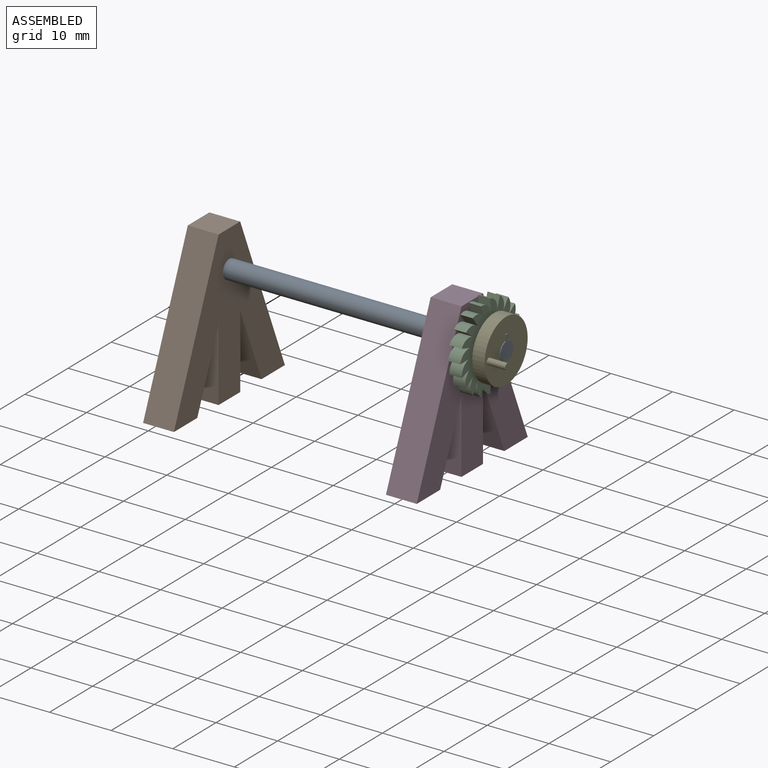
[diagram: assembled view]
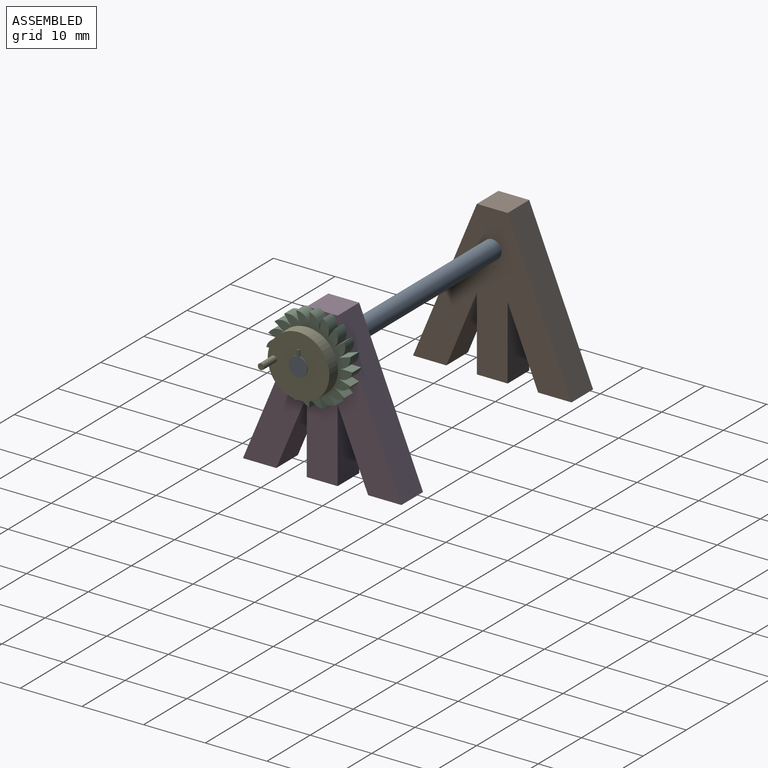
[diagram: assembled view, second angle]
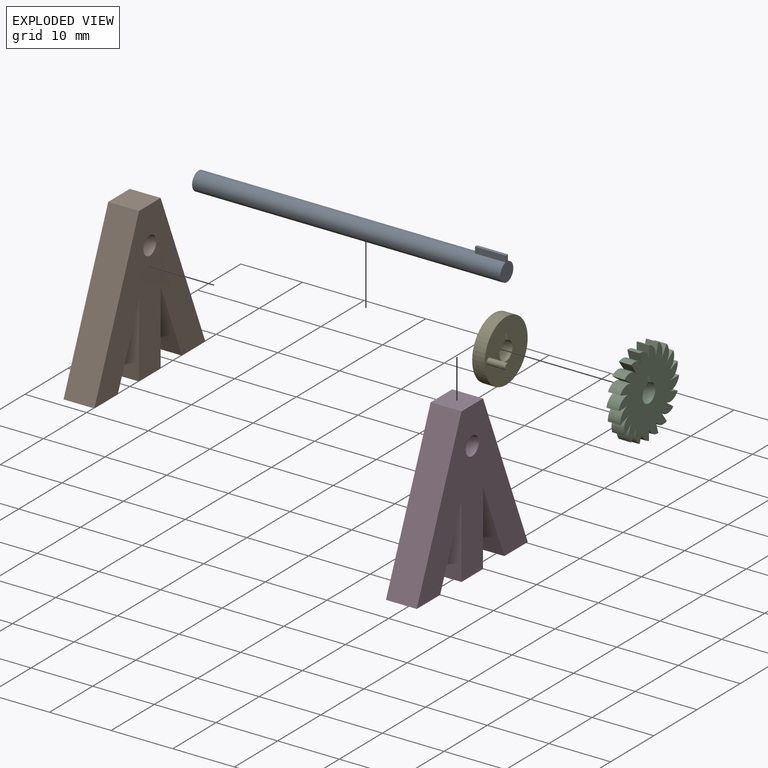
[diagram: exploded view]
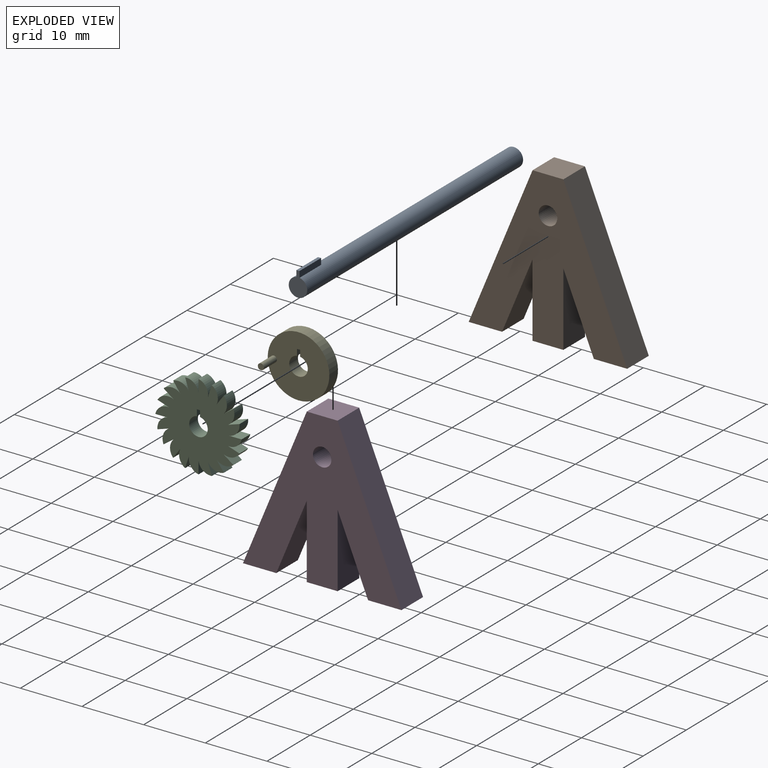
[diagram: exploded view, second angle]
ASSEMBLY  parts=5 mates=5
PART A: 7 faces, bbox 50x3x4 mm
  f0: cylinder r=1.5mm len=50mm, axis (-1,0,0), area 468.7mm2, adj f1,f2,f4,f5,f6
  f1: plane 3.98x3mm, normal (1,0,0), area 7.6mm2, adj f0,f3,f4,f5
  f2: plane 3x3mm, normal (-1,0,0), area 7.1mm2, adj f0
  f3: plane 5x0.5mm, normal (0,0,1), area 2.5mm2, adj f1,f4,f5,f6
  f4: plane 5x1mm, normal (0,-1,0), area 5mm2, adj f0,f1,f3,f6
  f5: plane 5x1mm, normal (0,1,0), area 5mm2, adj f0,f1,f3,f6
  f6: plane 1x0.5mm, normal (-1,0,0), area 0.5mm2, adj f0,f3,f4,f5
PART B: 13 faces, bbox 5x25.7x25 mm
  f0: plane 5x5mm, normal (0,0,1), area 25mm2, adj f1,f10,f11,f12
  f1: plane 25x10.36mm, normal (0,-0.92,0.38), area 135.3mm2, adj f0,f2,f11,f12
  f2: plane 5.41x5mm, normal (0,0,-1), area 27.1mm2, adj f1,f3,f11,f12
  f3: plane 11.93x5mm, normal (0,0.92,-0.38), area 64.6mm2, adj f2,f4,f11,f12
  f4: plane 11.93x5mm, normal (0,-1,0), area 59.7mm2, adj f3,f5,f11,f12
  f5: plane 5x5mm, normal (0,0,-1), area 25mm2, adj f4,f6,f11,f12
  f6: plane 11.93x5mm, normal (0,1,0), area 59.7mm2, adj f5,f7,f11,f12
  f7: plane 11.93x5mm, normal (0,-0.92,-0.38), area 64.6mm2, adj f6,f8,f11,f12
  f8: plane 5.41x5mm, normal (0,0,-1), area 27.1mm2, adj f7,f10,f11,f12
  f9: cylinder r=1.5mm len=5mm, axis (-1,0,0), area 47.1mm2, adj f11,f12
  f10: plane 25x10.36mm, normal (0,0.92,0.38), area 135.3mm2, adj f0,f8,f11,f12
  f11: plane 25.71x25mm, normal (1,0,0), area 317.8mm2, adj f0,f1,f2,f3,f4,f5,f6,f7
  f12: plane 25.71x25mm, normal (-1,0,0), area 317.8mm2, adj f0,f1,f2,f3,f4,f5,f6,f7
PART C: 46 faces, bbox 2x14x14 mm
  f0: plane 2x1mm, normal (0,1,0), area 2mm2, adj f1,f43,f44,f45
  f1: plane 2x0.5mm, normal (0,0,-1), area 1mm2, adj f0,f2,f44,f45
  f2: plane 2x1mm, normal (0,-1,0), area 2mm2, adj f1,f43,f44,f45
  f3: cylinder r=2mm len=2.16mm, axis (-1,0,0), area 6mm2, adj f4,f42,f44,f45
  f4: plane 2x1.9mm, normal (0,0.95,0.31), area 4mm2, adj f3,f5,f44,f45
  f5: cylinder r=2mm len=2.57mm, axis (-1,0,0), area 6mm2, adj f4,f6,f44,f45
  f6: plane 2x1.62mm, normal (0,0.81,0.59), area 4mm2, adj f5,f7,f44,f45
  f7: cylinder r=2mm len=2.72mm, axis (-1,0,0), area 6mm2, adj f6,f8,f44,f45
  f8: plane 2x1.62mm, normal (0,0.59,0.81), area 4mm2, adj f7,f9,f44,f45
  f9: cylinder r=2mm len=2.61mm, axis (-1,0,0), area 6mm2, adj f8,f10,f44,f45
  f10: plane 2x1.9mm, normal (0,0.31,0.95), area 4mm2, adj f9,f11,f44,f45
  f11: cylinder r=2mm len=2.24mm, axis (-1,0,0), area 6mm2, adj f10,f12,f44,f45
  f12: plane 2x2mm, normal (0,0,1), area 4mm2, adj f11,f13,f44,f45
  f13: cylinder r=2mm len=2.16mm, axis (-1,0,0), area 6mm2, adj f12,f14,f44,f45
  f14: plane 2x1.9mm, normal (0,-0.31,0.95), area 4mm2, adj f13,f15,f44,f45
  f15: cylinder r=2mm len=2.57mm, axis (-1,0,0), area 6mm2, adj f14,f16,f44,f45
  f16: plane 2x1.62mm, normal (0,-0.59,0.81), area 4mm2, adj f15,f17,f44,f45
  f17: cylinder r=2mm len=2.72mm, axis (-1,0,0), area 6mm2, adj f16,f18,f44,f45
  f18: plane 2x1.62mm, normal (0,-0.81,0.59), area 4mm2, adj f17,f19,f44,f45
  f19: cylinder r=2mm len=2.61mm, axis (-1,0,0), area 6mm2, adj f18,f20,f44,f45
  f20: plane 2x1.9mm, normal (0,-0.95,0.31), area 4mm2, adj f19,f21,f44,f45
  f21: cylinder r=2mm len=2.24mm, axis (-1,0,0), area 6mm2, adj f20,f22,f44,f45
  f22: plane 2x2mm, normal (0,-1,0), area 4mm2, adj f21,f23,f44,f45
  f23: cylinder r=2mm len=2.16mm, axis (-1,0,0), area 6mm2, adj f22,f24,f44,f45
  f24: plane 2x1.9mm, normal (0,-0.95,-0.31), area 4mm2, adj f23,f25,f44,f45
  f25: cylinder r=2mm len=2.57mm, axis (-1,0,0), area 6mm2, adj f24,f26,f44,f45
  f26: plane 2x1.62mm, normal (0,-0.81,-0.59), area 4mm2, adj f25,f27,f44,f45
  f27: cylinder r=2mm len=2.72mm, axis (-1,0,0), area 6mm2, adj f26,f28,f44,f45
  f28: plane 2x1.62mm, normal (0,-0.59,-0.81), area 4mm2, adj f27,f29,f44,f45
  f29: cylinder r=2mm len=2.61mm, axis (-1,0,0), area 6mm2, adj f28,f30,f44,f45
  f30: plane 2x1.9mm, normal (0,-0.31,-0.95), area 4mm2, adj f29,f31,f44,f45
  f31: cylinder r=2mm len=2.24mm, axis (-1,0,0), area 6mm2, adj f30,f32,f44,f45
  f32: plane 2x2mm, normal (0,0,-1), area 4mm2, adj f31,f33,f44,f45
  f33: cylinder r=2mm len=2.16mm, axis (-1,0,0), area 6mm2, adj f32,f34,f44,f45
  f34: plane 2x1.9mm, normal (0,0.31,-0.95), area 4mm2, adj f33,f35,f44,f45
  f35: cylinder r=2mm len=2.57mm, axis (-1,0,0), area 6mm2, adj f34,f36,f44,f45
  f36: plane 2x1.62mm, normal (0,0.59,-0.81), area 4mm2, adj f35,f37,f44,f45
  f37: cylinder r=2mm len=2.72mm, axis (-1,0,0), area 6mm2, adj f36,f38,f44,f45
  f38: plane 2x1.62mm, normal (0,0.81,-0.59), area 4mm2, adj f37,f39,f44,f45
  f39: cylinder r=2mm len=2.61mm, axis (-1,0,0), area 6mm2, adj f38,f40,f44,f45
  f40: plane 2x1.9mm, normal (0,0.95,-0.31), area 4mm2, adj f39,f41,f44,f45
  f41: cylinder r=2mm len=2.24mm, axis (-1,0,0), area 6mm2, adj f40,f42,f44,f45
  f42: plane 2x2mm, normal (0,1,0), area 4mm2, adj f3,f41,f44,f45
  f43: cylinder r=1.5mm len=3mm, axis (-1,0,0), area 17.8mm2, adj f0,f2,f44,f45
  f44: plane 14x14mm, normal (1,0,0), area 120.7mm2, adj f0,f1,f2,f3,f4,f5,f6,f7
  f45: plane 14x14mm, normal (-1,0,0), area 120.7mm2, adj f0,f1,f2,f3,f4,f5,f6,f7
PART D: same geometry as B
PART E: 9 faces, bbox 5x10x10 mm
  f0: plane 2x1mm, normal (0,1,0), area 2mm2, adj f1,f4,f5,f6
  f1: plane 2x0.5mm, normal (0,0,-1), area 1mm2, adj f0,f2,f5,f6
  f2: plane 2x1mm, normal (0,-1,0), area 2mm2, adj f1,f4,f5,f6
  f3: cylinder r=5mm len=10mm, axis (-1,0,0), area 62.8mm2, adj f5,f6
  f4: cylinder r=1.5mm len=3mm, axis (-1,0,0), area 17.8mm2, adj f0,f2,f5,f6
  f5: plane 10x10mm, normal (1,0,0), area 70.2mm2, adj f0,f1,f2,f3,f4,f7
  f6: plane 10x10mm, normal (-1,0,0), area 71mm2, adj f0,f1,f2,f3,f4
  f7: cylinder r=0.5mm len=3mm, axis (-1,0,0), area 9.4mm2, adj f5,f8
  f8: plane 1x1mm, normal (1,0,0), area 0.8mm2, adj f7
PLACE A t=(-16.84,-34.27,-22.21)mm
PLACE B t=(-41.84,-34.27,-22.21)mm
PLACE C t=(3.5,-34.27,-22.21)mm
PLACE D t=(-2.45,-34.27,-22.21)mm
PLACE E t=(6.03,-34.27,-22.21)mm
MATE slider A.f0 <-> D.f9  axis (-1,0,0) through (-16.84,-34.27,-22.21)mm
MATE slider E.f4 <-> A.f0  axis (1,0,0) through (8.03,-34.27,-22.21)mm
MATE planar B.f9 <-> A.f0  axis (-1,0,0) through (-41.84,-34.27,-22.21)mm
MATE slider B.f9 <-> A.f0  axis (1,0,0) through (-36.84,-34.27,-22.21)mm
MATE slider A.f0 <-> C.f43  axis (-1,0,0) through (8.16,-34.27,-22.21)mm
